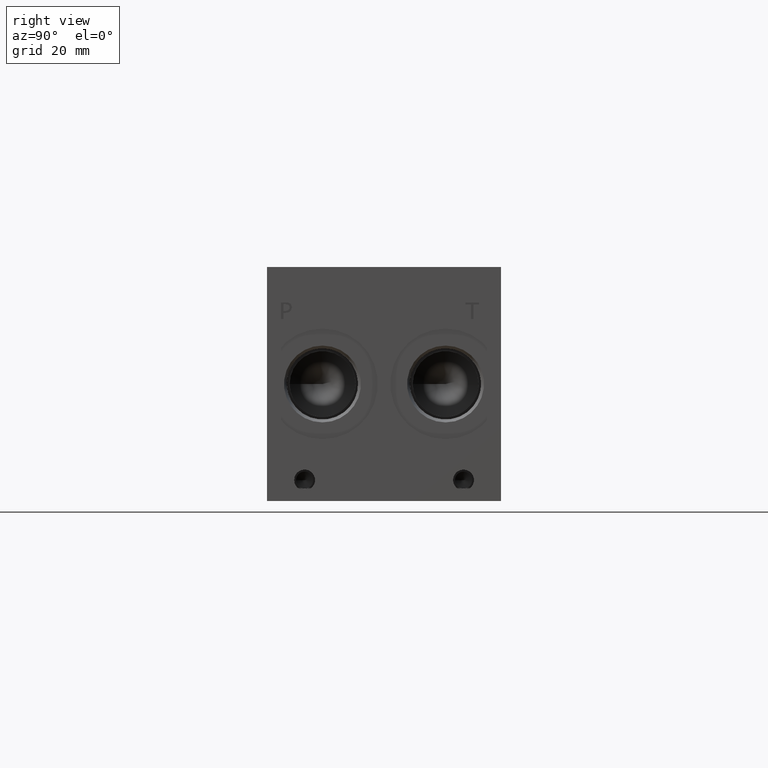
[diagram: clean part render]
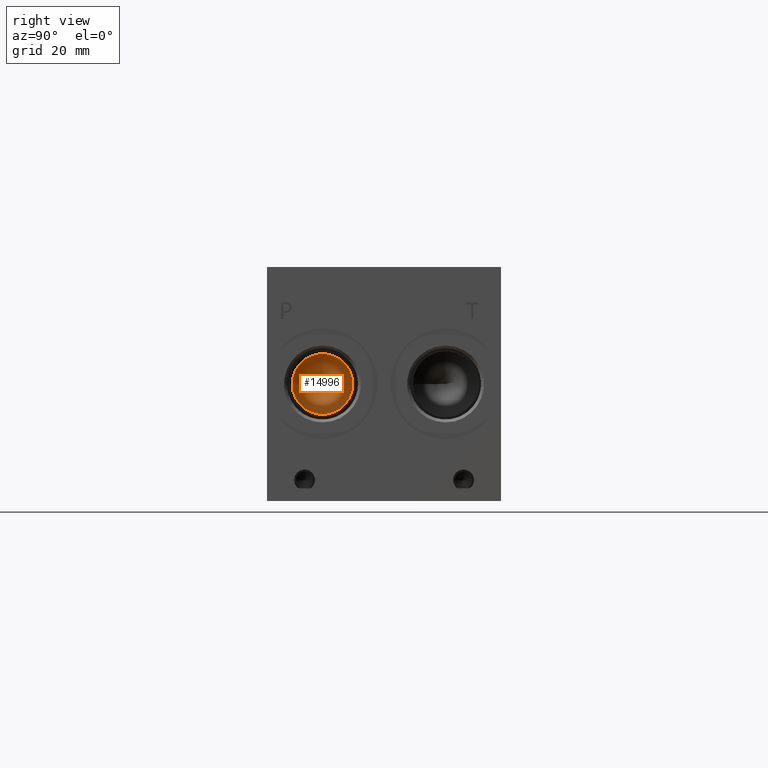
[diagram: same view with one face highlighted and labeled with its STEP entity id]
A machine part, right view. The second image highlights one B-rep face of the part: STEP entity #14996.
In plain terms, the highlighted conical surface has half-angle 60 deg.
Its self-contained STEP definition (entity closure, byte-faithful):
#35=CONICAL_SURFACE('',#15723,5.7531,1.0471975511966);
#530=CIRCLE('',#15724,11.5062);
#531=CIRCLE('',#15725,11.5062);
#1952=FACE_OUTER_BOUND('',#2815,.T.);
#2815=EDGE_LOOP('',(#12583,#12584,#12585,#12586));
#4206=LINE('',#25555,#5512);
#5512=VECTOR('',#18425,5.7531);
#6805=VERTEX_POINT('',#25551);
#6806=VERTEX_POINT('',#25552);
#6807=VERTEX_POINT('',#25554);
#8814=EDGE_CURVE('',#6805,#6806,#530,.T.);
#8815=EDGE_CURVE('',#6806,#6807,#4206,.T.);
#8816=EDGE_CURVE('',#6806,#6805,#531,.T.);
#12583=ORIENTED_EDGE('',*,*,#8814,.T.);
#12584=ORIENTED_EDGE('',*,*,#8815,.T.);
#12585=ORIENTED_EDGE('',*,*,#8815,.F.);
#12586=ORIENTED_EDGE('',*,*,#8816,.T.);
#14996=ADVANCED_FACE('',(#1952),#35,.F.);
#15723=AXIS2_PLACEMENT_3D('',#25550,#18421,#18422);
#15724=AXIS2_PLACEMENT_3D('',#25553,#18423,#18424);
#15725=AXIS2_PLACEMENT_3D('',#25556,#18426,#18427);
#18421=DIRECTION('center_axis',(1.,0.,0.));
#18422=DIRECTION('ref_axis',(0.,1.,0.));
#18423=DIRECTION('center_axis',(1.,0.,0.));
#18424=DIRECTION('ref_axis',(0.,1.,0.));
#18425=DIRECTION('',(-0.5,0.866025403784439,1.06057523872491E-16));
#18426=DIRECTION('center_axis',(1.,0.,0.));
#18427=DIRECTION('ref_axis',(0.,1.,0.));
#25550=CARTESIAN_POINT('Origin',(213.340446166325,21.082,44.45));
#25551=CARTESIAN_POINT('',(216.662,32.5882,44.45));
#25552=CARTESIAN_POINT('',(216.662,9.57580000000001,44.45));
#25553=CARTESIAN_POINT('Origin',(216.662,21.082,44.45));
#25554=CARTESIAN_POINT('',(210.01889233265,21.082,44.45));
#25555=CARTESIAN_POINT('',(213.340446166325,15.3289,44.45));
#25556=CARTESIAN_POINT('Origin',(216.662,21.082,44.45));